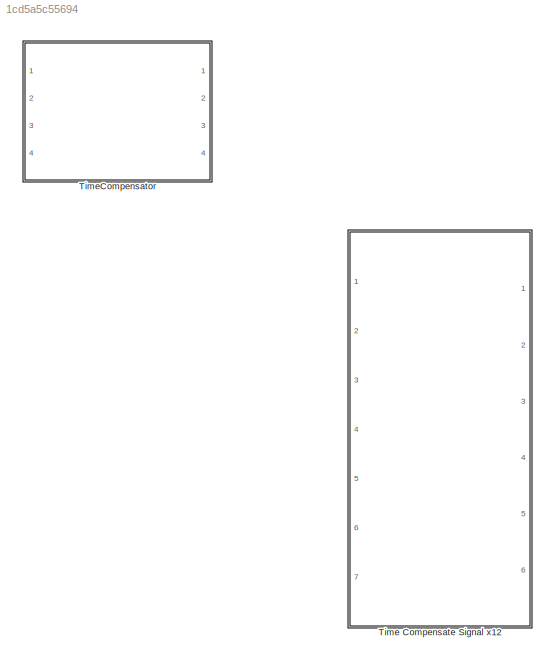
MODEL slx_1cd5a5c55694
KIND library
CONFIG AbsTol = auto
CONFIG EnableMultiTasking = off
CONFIG FixedStep = auto
CONFIG MaxStep = auto
CONFIG MinStep = auto
CONFIG RelTol = 1e-3
CONFIG SampleTimeConstraint = Unconstrained
CONFIG Solver = VariableStepAuto
CONFIG SolverName = VariableStepAuto
CONFIG StartTime = 0.0
CONFIG StopTime = 10.0
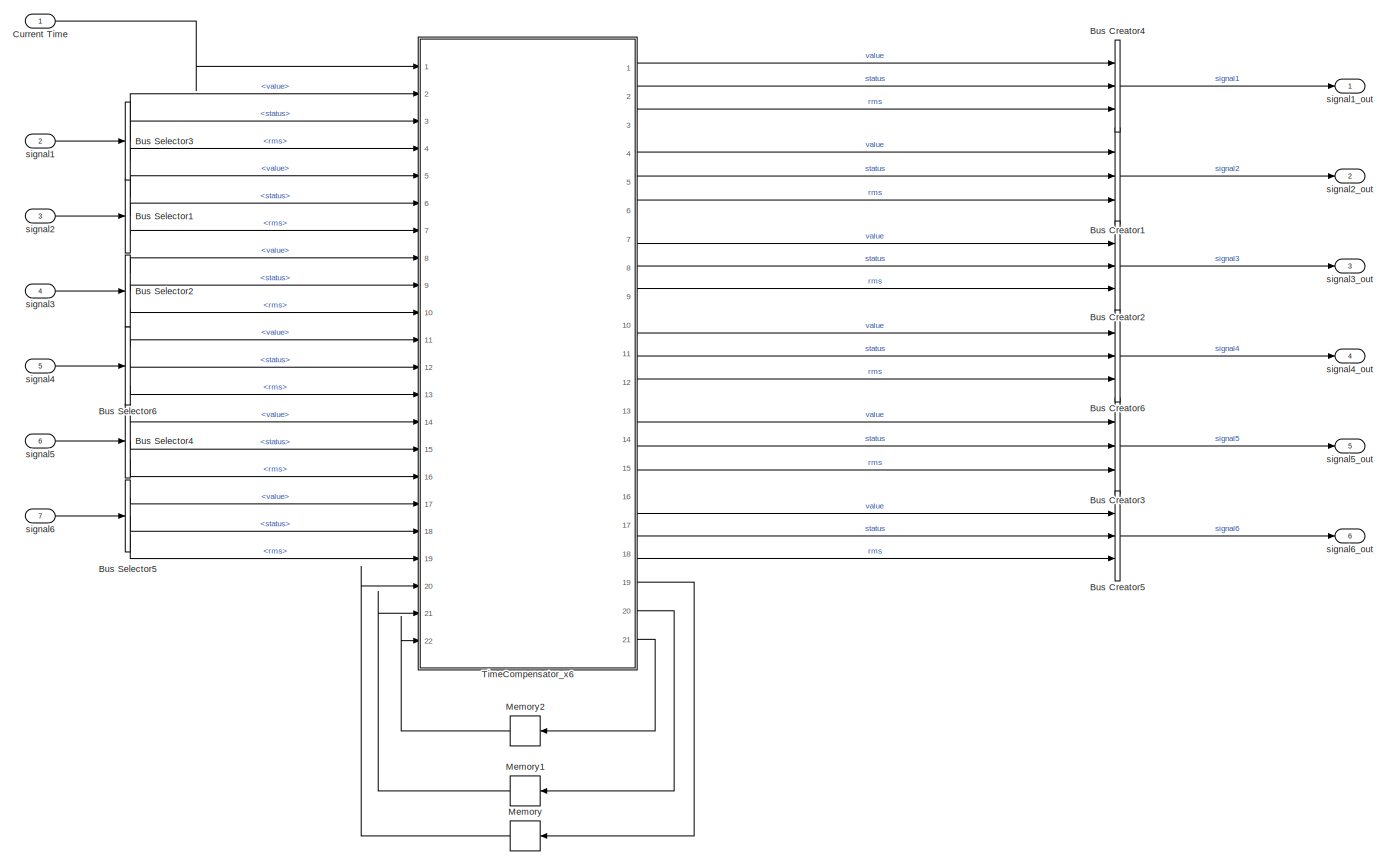
[diagram: Time Compensate Signal x12 - part 1/1, most of the canvas]
BLOCK [SubSystem] Time Compensate Signal x12
  Ports = [7, 6]
  RequestExecContextInheritance = off
BLOCK [BusCreator] Time Compensate Signal x12/Bus Creator1
  DisplayOption = bar
  InheritFromInputs = on
  Inputs = 3
  NonVirtualBus = on
  OutDataTypeStr = Bus: OutputSignalObject
  Ports = [3, 1]
BLOCK [BusCreator] Time Compensate Signal x12/Bus Creator2
  DisplayOption = bar
  InheritFromInputs = on
  Inputs = 3
  NonVirtualBus = on
  OutDataTypeStr = Bus: OutputSignalObject
  Ports = [3, 1]
BLOCK [BusCreator] Time Compensate Signal x12/Bus Creator3
  DisplayOption = bar
  InheritFromInputs = on
  Inputs = 3
  NonVirtualBus = on
  OutDataTypeStr = Bus: OutputSignalObject
  Ports = [3, 1]
BLOCK [BusCreator] Time Compensate Signal x12/Bus Creator4
  DisplayOption = bar
  InheritFromInputs = on
  Inputs = 3
  NonVirtualBus = on
  OutDataTypeStr = Bus: OutputSignalObject
  Ports = [3, 1]
BLOCK [BusCreator] Time Compensate Signal x12/Bus Creator5
  DisplayOption = bar
  InheritFromInputs = on
  Inputs = 3
  NonVirtualBus = on
  OutDataTypeStr = Bus: OutputSignalObject
  Ports = [3, 1]
BLOCK [BusCreator] Time Compensate Signal x12/Bus Creator6
  DisplayOption = bar
  InheritFromInputs = on
  Inputs = 3
  NonVirtualBus = on
  OutDataTypeStr = Bus: OutputSignalObject
  Ports = [3, 1]
BLOCK [BusSelector] Time Compensate Signal x12/Bus Selector1
  OutputAsBus = off
  OutputSignals = value,status,rms
  Ports = [1, 3]
BLOCK [BusSelector] Time Compensate Signal x12/Bus Selector2
  OutputAsBus = off
  OutputSignals = value,status,rms
  Ports = [1, 3]
BLOCK [BusSelector] Time Compensate Signal x12/Bus Selector3
  OutputAsBus = off
  OutputSignals = value,status,rms
  Ports = [1, 3]
BLOCK [BusSelector] Time Compensate Signal x12/Bus Selector4
  OutputAsBus = off
  OutputSignals = value,status,rms
  Ports = [1, 3]
BLOCK [BusSelector] Time Compensate Signal x12/Bus Selector5
  OutputAsBus = off
  OutputSignals = value,status,rms
  Ports = [1, 3]
BLOCK [BusSelector] Time Compensate Signal x12/Bus Selector6
  OutputAsBus = off
  OutputSignals = value,status,rms
  Ports = [1, 3]
BLOCK [Inport] Time Compensate Signal x12/Current Time
  IconDisplay = Port number
BLOCK [Memory] Time Compensate Signal x12/Memory
BLOCK [Memory] Time Compensate Signal x12/Memory1
BLOCK [Memory] Time Compensate Signal x12/Memory2
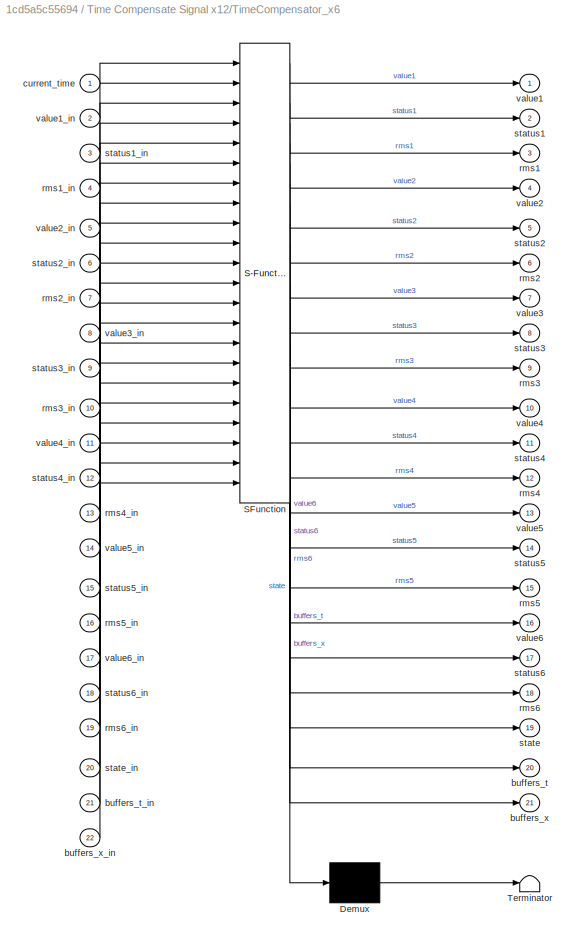
BLOCK [SubSystem] Time Compensate Signal x12/TimeCompensator_x6
  ErrorFcn = Stateflow.Translate.translate
  PermitHierarchicalResolution = ExplicitOnly
  Ports = [22, 21]
  RequestExecContextInheritance = off
  SFBlockType = MATLAB Function
  TreatAsAtomicUnit = on
BLOCK [Demux] Time Compensate Signal x12/TimeCompensator_x6/ Demux 
  Outputs = 1
  Ports = [1, 1]
BLOCK [S-Function] Time Compensate Signal x12/TimeCompensator_x6/ SFunction 
  EnableBusSupport = off
  FunctionName = sf_sfun
  PortCounts = [22 22]
  Ports = [22, 22]
  SFcnIsStateOwnerBlock = off
  SFunctionDeploymentMode = off
  Tag = Stateflow S-Function 1
BLOCK [Terminator] Time Compensate Signal x12/TimeCompensator_x6/ Terminator 
BLOCK [Outport] Time Compensate Signal x12/TimeCompensator_x6/buffers_t
  IconDisplay = Port number
  Port = 20
BLOCK [Inport] Time Compensate Signal x12/TimeCompensator_x6/buffers_t_in
  IconDisplay = Port number
  Port = 21
BLOCK [Outport] Time Compensate Signal x12/TimeCompensator_x6/buffers_x
  IconDisplay = Port number
  Port = 21
BLOCK [Inport] Time Compensate Signal x12/TimeCompensator_x6/buffers_x_in
  IconDisplay = Port number
  Port = 22
BLOCK [Inport] Time Compensate Signal x12/TimeCompensator_x6/current_time
  IconDisplay = Port number
BLOCK [Outport] Time Compensate Signal x12/TimeCompensator_x6/rms1
  IconDisplay = Port number
  Port = 3
BLOCK [Inport] Time Compensate Signal x12/TimeCompensator_x6/rms1_in
  IconDisplay = Port number
  Port = 4
BLOCK [Outport] Time Compensate Signal x12/TimeCompensator_x6/rms2
  IconDisplay = Port number
  Port = 6
BLOCK [Inport] Time Compensate Signal x12/TimeCompensator_x6/rms2_in
  IconDisplay = Port number
  Port = 7
BLOCK [Outport] Time Compensate Signal x12/TimeCompensator_x6/rms3
  IconDisplay = Port number
  Port = 9
BLOCK [Inport] Time Compensate Signal x12/TimeCompensator_x6/rms3_in
  IconDisplay = Port number
  Port = 10
BLOCK [Outport] Time Compensate Signal x12/TimeCompensator_x6/rms4
  IconDisplay = Port number
  Port = 12
BLOCK [Inport] Time Compensate Signal x12/TimeCompensator_x6/rms4_in
  IconDisplay = Port number
  Port = 13
BLOCK [Outport] Time Compensate Signal x12/TimeCompensator_x6/rms5
  IconDisplay = Port number
  Port = 15
BLOCK [Inport] Time Compensate Signal x12/TimeCompensator_x6/rms5_in
  IconDisplay = Port number
  Port = 16
BLOCK [Outport] Time Compensate Signal x12/TimeCompensator_x6/rms6
  IconDisplay = Port number
  Port = 18
BLOCK [Inport] Time Compensate Signal x12/TimeCompensator_x6/rms6_in
  IconDisplay = Port number
  Port = 19
BLOCK [Outport] Time Compensate Signal x12/TimeCompensator_x6/state
  IconDisplay = Port number
  Port = 19
BLOCK [Inport] Time Compensate Signal x12/TimeCompensator_x6/state_in
  IconDisplay = Port number
  Port = 20
BLOCK [Outport] Time Compensate Signal x12/TimeCompensator_x6/status1
  IconDisplay = Port number
  Port = 2
BLOCK [Inport] Time Compensate Signal x12/TimeCompensator_x6/status1_in
  IconDisplay = Port number
  Port = 3
BLOCK [Outport] Time Compensate Signal x12/TimeCompensator_x6/status2
  IconDisplay = Port number
  Port = 5
BLOCK [Inport] Time Compensate Signal x12/TimeCompensator_x6/status2_in
  IconDisplay = Port number
  Port = 6
BLOCK [Outport] Time Compensate Signal x12/TimeCompensator_x6/status3
  IconDisplay = Port number
  Port = 8
BLOCK [Inport] Time Compensate Signal x12/TimeCompensator_x6/status3_in
  IconDisplay = Port number
  Port = 9
BLOCK [Outport] Time Compensate Signal x12/TimeCompensator_x6/status4
  IconDisplay = Port number
  Port = 11
BLOCK [Inport] Time Compensate Signal x12/TimeCompensator_x6/status4_in
  IconDisplay = Port number
  Port = 12
BLOCK [Outport] Time Compensate Signal x12/TimeCompensator_x6/status5
  IconDisplay = Port number
  Port = 14
BLOCK [Inport] Time Compensate Signal x12/TimeCompensator_x6/status5_in
  IconDisplay = Port number
  Port = 15
BLOCK [Outport] Time Compensate Signal x12/TimeCompensator_x6/status6
  IconDisplay = Port number
  Port = 17
BLOCK [Inport] Time Compensate Signal x12/TimeCompensator_x6/status6_in
  IconDisplay = Port number
  Port = 18
BLOCK [Outport] Time Compensate Signal x12/TimeCompensator_x6/value1
  IconDisplay = Port number
BLOCK [Inport] Time Compensate Signal x12/TimeCompensator_x6/value1_in
  IconDisplay = Port number
  Port = 2
BLOCK [Outport] Time Compensate Signal x12/TimeCompensator_x6/value2
  IconDisplay = Port number
  Port = 4
BLOCK [Inport] Time Compensate Signal x12/TimeCompensator_x6/value2_in
  IconDisplay = Port number
  Port = 5
BLOCK [Outport] Time Compensate Signal x12/TimeCompensator_x6/value3
  IconDisplay = Port number
  Port = 7
BLOCK [Inport] Time Compensate Signal x12/TimeCompensator_x6/value3_in
  IconDisplay = Port number
  Port = 8
BLOCK [Outport] Time Compensate Signal x12/TimeCompensator_x6/value4
  IconDisplay = Port number
  Port = 10
BLOCK [Inport] Time Compensate Signal x12/TimeCompensator_x6/value4_in
  IconDisplay = Port number
  Port = 11
BLOCK [Outport] Time Compensate Signal x12/TimeCompensator_x6/value5
  IconDisplay = Port number
  Port = 13
BLOCK [Inport] Time Compensate Signal x12/TimeCompensator_x6/value5_in
  IconDisplay = Port number
  Port = 14
BLOCK [Outport] Time Compensate Signal x12/TimeCompensator_x6/value6
  IconDisplay = Port number
  Port = 16
BLOCK [Inport] Time Compensate Signal x12/TimeCompensator_x6/value6_in
  IconDisplay = Port number
  Port = 17
BLOCK [Inport] Time Compensate Signal x12/signal1
  IconDisplay = Port number
  OutDataTypeStr = Bus: InputSignalObject
  Port = 2
BLOCK [Outport] Time Compensate Signal x12/signal1_out
  IconDisplay = Port number
BLOCK [Inport] Time Compensate Signal x12/signal2
  IconDisplay = Port number
  OutDataTypeStr = Bus: InputSignalObject
  Port = 3
BLOCK [Outport] Time Compensate Signal x12/signal2_out
  IconDisplay = Port number
  Port = 2
BLOCK [Inport] Time Compensate Signal x12/signal3
  IconDisplay = Port number
  OutDataTypeStr = Bus: InputSignalObject
  Port = 4
BLOCK [Outport] Time Compensate Signal x12/signal3_out
  IconDisplay = Port number
  Port = 3
BLOCK [Inport] Time Compensate Signal x12/signal4
  IconDisplay = Port number
  OutDataTypeStr = Bus: InputSignalObject
  Port = 5
BLOCK [Outport] Time Compensate Signal x12/signal4_out
  IconDisplay = Port number
  Port = 4
BLOCK [Inport] Time Compensate Signal x12/signal5
  IconDisplay = Port number
  OutDataTypeStr = Bus: InputSignalObject
  Port = 6
BLOCK [Outport] Time Compensate Signal x12/signal5_out
  IconDisplay = Port number
  Port = 5
BLOCK [Inport] Time Compensate Signal x12/signal6
  IconDisplay = Port number
  OutDataTypeStr = Bus: InputSignalObject
  Port = 7
BLOCK [Outport] Time Compensate Signal x12/signal6_out
  IconDisplay = Port number
  Port = 6
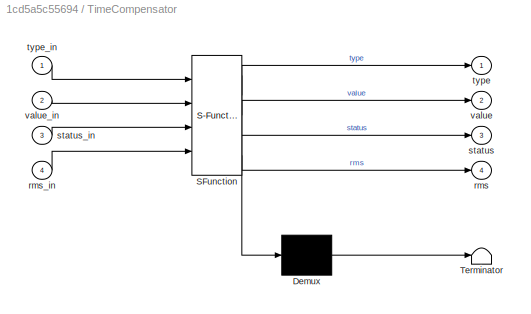
BLOCK [SubSystem] TimeCompensator
  ErrorFcn = Stateflow.Translate.translate
  PermitHierarchicalResolution = ExplicitOnly
  Ports = [4, 4]
  RequestExecContextInheritance = off
  SFBlockType = MATLAB Function
  TreatAsAtomicUnit = on
BLOCK [Demux] TimeCompensator/ Demux 
  Outputs = 1
  Ports = [1, 1]
BLOCK [S-Function] TimeCompensator/ SFunction 
  EnableBusSupport = on
  FunctionName = sf_sfun
  PortCounts = [4 5]
  Ports = [4, 5]
  SFcnIsStateOwnerBlock = off
  SFunctionDeploymentMode = off
  Tag = Stateflow S-Function 2
BLOCK [Terminator] TimeCompensator/ Terminator 
BLOCK [Outport] TimeCompensator/rms
  IconDisplay = Port number
  Port = 4
BLOCK [Inport] TimeCompensator/rms_in
  IconDisplay = Port number
  Port = 4
BLOCK [Outport] TimeCompensator/status
  IconDisplay = Port number
  Port = 3
BLOCK [Inport] TimeCompensator/status_in
  IconDisplay = Port number
  Port = 3
BLOCK [Outport] TimeCompensator/type
  IconDisplay = Port number
BLOCK [Inport] TimeCompensator/type_in
  IconDisplay = Port number
BLOCK [Outport] TimeCompensator/value
  IconDisplay = Port number
  Port = 2
BLOCK [Inport] TimeCompensator/value_in
  IconDisplay = Port number
  Port = 2
LINE Time Compensate Signal x12/Bus Creator1:1 -> Time Compensate Signal x12/signal2_out:1
LINE Time Compensate Signal x12/Bus Creator2:1 -> Time Compensate Signal x12/signal3_out:1
LINE Time Compensate Signal x12/Bus Creator3:1 -> Time Compensate Signal x12/signal5_out:1
LINE Time Compensate Signal x12/Bus Creator4:1 -> Time Compensate Signal x12/signal1_out:1
LINE Time Compensate Signal x12/Bus Creator5:1 -> Time Compensate Signal x12/signal6_out:1
LINE Time Compensate Signal x12/Bus Creator6:1 -> Time Compensate Signal x12/signal4_out:1
LINE Time Compensate Signal x12/Bus Selector1:1 -> Time Compensate Signal x12/TimeCompensator_x6:5
LINE Time Compensate Signal x12/Bus Selector1:2 -> Time Compensate Signal x12/TimeCompensator_x6:6
LINE Time Compensate Signal x12/Bus Selector1:3 -> Time Compensate Signal x12/TimeCompensator_x6:7
LINE Time Compensate Signal x12/Bus Selector2:1 -> Time Compensate Signal x12/TimeCompensator_x6:8
LINE Time Compensate Signal x12/Bus Selector2:2 -> Time Compensate Signal x12/TimeCompensator_x6:9
LINE Time Compensate Signal x12/Bus Selector2:3 -> Time Compensate Signal x12/TimeCompensator_x6:10
LINE Time Compensate Signal x12/Bus Selector3:1 -> Time Compensate Signal x12/TimeCompensator_x6:2
LINE Time Compensate Signal x12/Bus Selector3:2 -> Time Compensate Signal x12/TimeCompensator_x6:3
LINE Time Compensate Signal x12/Bus Selector3:3 -> Time Compensate Signal x12/TimeCompensator_x6:4
LINE Time Compensate Signal x12/Bus Selector4:1 -> Time Compensate Signal x12/TimeCompensator_x6:14
LINE Time Compensate Signal x12/Bus Selector4:2 -> Time Compensate Signal x12/TimeCompensator_x6:15
LINE Time Compensate Signal x12/Bus Selector4:3 -> Time Compensate Signal x12/TimeCompensator_x6:16
LINE Time Compensate Signal x12/Bus Selector5:1 -> Time Compensate Signal x12/TimeCompensator_x6:17
LINE Time Compensate Signal x12/Bus Selector5:2 -> Time Compensate Signal x12/TimeCompensator_x6:18
LINE Time Compensate Signal x12/Bus Selector5:3 -> Time Compensate Signal x12/TimeCompensator_x6:19
LINE Time Compensate Signal x12/Bus Selector6:1 -> Time Compensate Signal x12/TimeCompensator_x6:11
LINE Time Compensate Signal x12/Bus Selector6:2 -> Time Compensate Signal x12/TimeCompensator_x6:12
LINE Time Compensate Signal x12/Bus Selector6:3 -> Time Compensate Signal x12/TimeCompensator_x6:13
LINE Time Compensate Signal x12/Current Time:1 -> Time Compensate Signal x12/TimeCompensator_x6:1
LINE Time Compensate Signal x12/Memory1:1 -> Time Compensate Signal x12/TimeCompensator_x6:21
LINE Time Compensate Signal x12/Memory2:1 -> Time Compensate Signal x12/TimeCompensator_x6:22
LINE Time Compensate Signal x12/Memory:1 -> Time Compensate Signal x12/TimeCompensator_x6:20
LINE Time Compensate Signal x12/TimeCompensator_x6:1 -> Time Compensate Signal x12/Bus Creator4:1
LINE Time Compensate Signal x12/TimeCompensator_x6:10 -> Time Compensate Signal x12/Bus Creator6:1
LINE Time Compensate Signal x12/TimeCompensator_x6:11 -> Time Compensate Signal x12/Bus Creator6:2
LINE Time Compensate Signal x12/TimeCompensator_x6:12 -> Time Compensate Signal x12/Bus Creator6:3
LINE Time Compensate Signal x12/TimeCompensator_x6:13 -> Time Compensate Signal x12/Bus Creator3:1
LINE Time Compensate Signal x12/TimeCompensator_x6:14 -> Time Compensate Signal x12/Bus Creator3:2
LINE Time Compensate Signal x12/TimeCompensator_x6:15 -> Time Compensate Signal x12/Bus Creator3:3
LINE Time Compensate Signal x12/TimeCompensator_x6:16 -> Time Compensate Signal x12/Bus Creator5:1
LINE Time Compensate Signal x12/TimeCompensator_x6:17 -> Time Compensate Signal x12/Bus Creator5:2
LINE Time Compensate Signal x12/TimeCompensator_x6:18 -> Time Compensate Signal x12/Bus Creator5:3
LINE Time Compensate Signal x12/TimeCompensator_x6:19 -> Time Compensate Signal x12/Memory:1
LINE Time Compensate Signal x12/TimeCompensator_x6:2 -> Time Compensate Signal x12/Bus Creator4:2
LINE Time Compensate Signal x12/TimeCompensator_x6:20 -> Time Compensate Signal x12/Memory1:1
LINE Time Compensate Signal x12/TimeCompensator_x6:21 -> Time Compensate Signal x12/Memory2:1
LINE Time Compensate Signal x12/TimeCompensator_x6:3 -> Time Compensate Signal x12/Bus Creator4:3
LINE Time Compensate Signal x12/TimeCompensator_x6:4 -> Time Compensate Signal x12/Bus Creator1:1
LINE Time Compensate Signal x12/TimeCompensator_x6:5 -> Time Compensate Signal x12/Bus Creator1:2
LINE Time Compensate Signal x12/TimeCompensator_x6:6 -> Time Compensate Signal x12/Bus Creator1:3
LINE Time Compensate Signal x12/TimeCompensator_x6:7 -> Time Compensate Signal x12/Bus Creator2:1
LINE Time Compensate Signal x12/TimeCompensator_x6:8 -> Time Compensate Signal x12/Bus Creator2:2
LINE Time Compensate Signal x12/TimeCompensator_x6:9 -> Time Compensate Signal x12/Bus Creator2:3
LINE Time Compensate Signal x12/signal1:1 -> Time Compensate Signal x12/Bus Selector3:1
LINE Time Compensate Signal x12/signal2:1 -> Time Compensate Signal x12/Bus Selector1:1
LINE Time Compensate Signal x12/signal3:1 -> Time Compensate Signal x12/Bus Selector2:1
LINE Time Compensate Signal x12/signal4:1 -> Time Compensate Signal x12/Bus Selector6:1
LINE Time Compensate Signal x12/signal5:1 -> Time Compensate Signal x12/Bus Selector4:1
LINE Time Compensate Signal x12/signal6:1 -> Time Compensate Signal x12/Bus Selector5:1
CHART Time Compensate Signal x12/TimeCompensator_x6 states=1 transitions=1
  STATE_LABEL 'eML_blk_kernel()'
  STATE_LABEL 'SCRIPT:\nfunction [value1,status1,rms1, ...\n          value2,status2,rms2, ... \n          value3,status3,rms3, ...\n          value4,status4,rms4, ...\n          value5,status5,rms5, ...\n          value6,status6,rms6, ...\n          state,buffers_t,buffers_x]  = TimeCompensator_x6(current_time, ...\n          value1_in,status1_in,rms1_in, ...\n          value2_in,status2_in,rms2_in, ...\n          value3...<+1989ch>'
CHART TimeCompensator states=1 transitions=1
  STATE_LABEL 'eML_blk_kernel()'
  STATE_LABEL 'SCRIPT:\nfunction [type,value,status,rms] = TimeCompensator(type_in,value_in,status_in,rms_in)\n\nif(status_in == SignalState.SIGNALSTATE_UNDEFINED)\n    value = 0;\n    rms = 0;\n    type = type_in;\n    status = status_in;\nelseif(status_in == SignalState.SIGNALSTATE_INITIALIZING)\n    value = 0;\n    rms = 0;\n    type = type_in;\n    status = status_in;\nelse\n    value = value_in;\n    rms = rms_in;\n    typ...<+41ch>'
